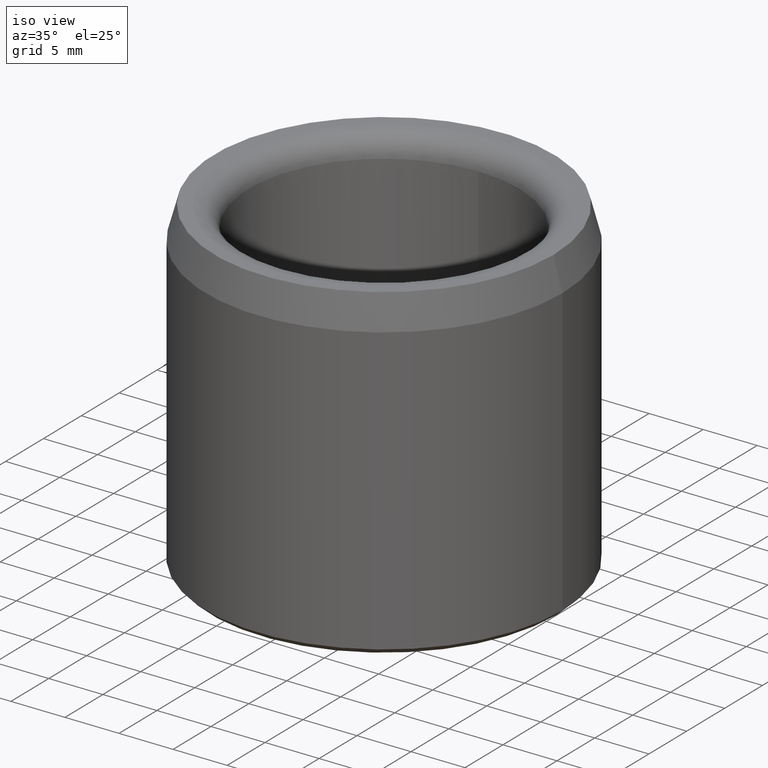
[diagram: clean part render]
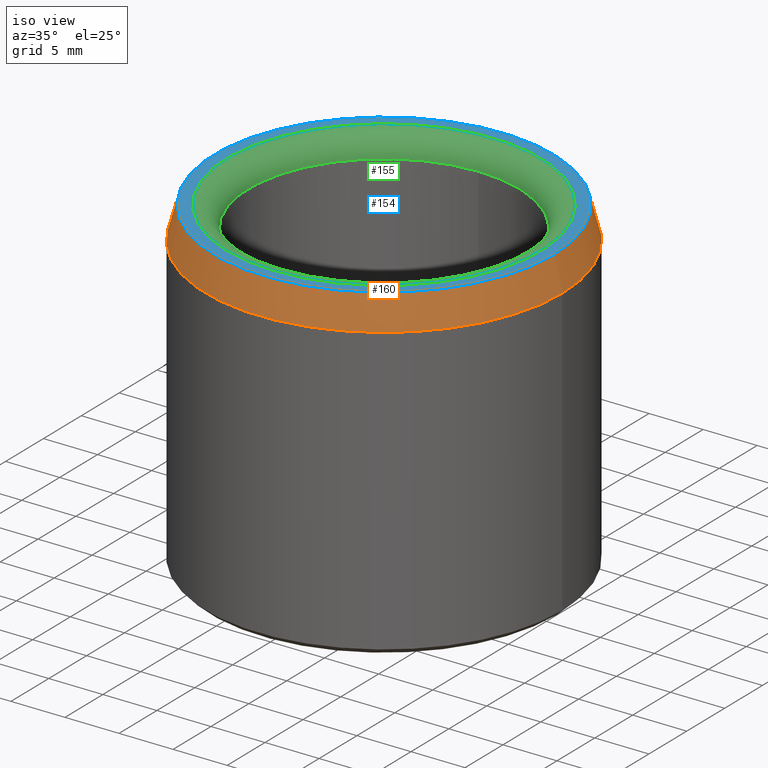
[diagram: same view with three faces highlighted in distinct colors, each labeled with its STEP entity id]
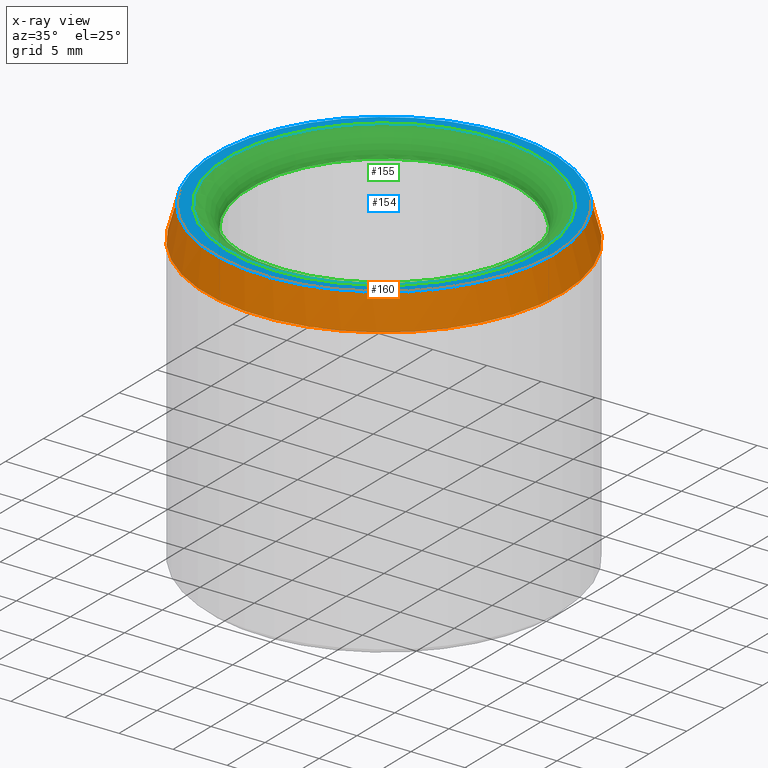
[diagram: x-ray of the same camera — body ghosted, the three highlighted faces saturated]
A machine part, iso view with three faces highlighted in distinct colors.
The next image is the same camera in x-ray (body ghosted, the three faces saturated) — at least one of them is partly hidden behind the body in this view.
Their STEP definitions:

[orange] entity #160 — the highlighted conical surface has half-angle 15 deg.
#160=ADVANCED_FACE('',(#184,#185),#186,.T.);
#184=FACE_BOUND('',#209,.T.);
#185=FACE_OUTER_BOUND('',#210,.T.);
#186=CONICAL_SURFACE('',#211,0.0165,0.261799387799149);
#209=EDGE_LOOP('',(#247));
#210=EDGE_LOOP('',(#248));
#211=AXIS2_PLACEMENT_3D('',#249,#250,#251);
#247=ORIENTED_EDGE('',*,*,#255,.T.);
#248=ORIENTED_EDGE('',*,*,#259,.F.);
#249=CARTESIAN_POINT('',(0.0,1.73472347597681E-018,0.027));
#250=DIRECTION('',(0.0,-6.12323399573677E-017,-1.0));
#251=DIRECTION('',(0.0,1.0,-6.12323399573677E-017));
#255=EDGE_CURVE('',#266,#266,#267,.T.);
#259=EDGE_CURVE('',#274,#274,#275,.T.);
#266=VERTEX_POINT('',#282);
#267=CIRCLE('',#283,0.0156961524227067);
#274=VERTEX_POINT('',#290);
#275=CIRCLE('',#291,0.0165);
#282=CARTESIAN_POINT('',(0.0156961524227067,1.73472347597681E-018,0.03));
#283=AXIS2_PLACEMENT_3D('',#301,#302,#303);
#290=CARTESIAN_POINT('',(0.0165,1.73472347597681E-018,0.027));
#291=AXIS2_PLACEMENT_3D('',#313,#314,#315);
#301=CARTESIAN_POINT('',(0.0,1.73472347597681E-018,0.03));
#302=DIRECTION('',(0.0,-6.12323399573677E-017,-1.0));
#303=DIRECTION('',(0.0,1.0,-6.12323399573677E-017));
#313=CARTESIAN_POINT('',(0.0,1.73472347597681E-018,0.027));
#314=DIRECTION('',(0.0,-6.12323399573677E-017,-1.0));
#315=DIRECTION('',(0.0,1.0,-6.12323399573677E-017));

[blue] entity #154 — the highlighted planar face has unit normal (0, 0, 1).
#154=ADVANCED_FACE('',(#166,#167),#168,.T.);
#166=FACE_BOUND('',#191,.T.);
#167=FACE_OUTER_BOUND('',#192,.T.);
#168=PLANE('',#193);
#191=EDGE_LOOP('',(#217));
#192=EDGE_LOOP('',(#218));
#193=AXIS2_PLACEMENT_3D('',#219,#220,#221);
#217=ORIENTED_EDGE('',*,*,#254,.T.);
#218=ORIENTED_EDGE('',*,*,#255,.F.);
#219=CARTESIAN_POINT('',(0.0156961524227067,1.73472347597681E-018,0.03));
#220=DIRECTION('',(0.0,6.12323399573677E-017,1.0));
#221=DIRECTION('',(0.0,-1.0,6.12323399573677E-017));
#254=EDGE_CURVE('',#264,#264,#265,.F.);
#255=EDGE_CURVE('',#266,#266,#267,.T.);
#264=VERTEX_POINT('',#280);
#265=CIRCLE('',#281,0.0145);
#266=VERTEX_POINT('',#282);
#267=CIRCLE('',#283,0.0156961524227067);
#280=CARTESIAN_POINT('',(0.0,-0.0145,0.03));
#281=AXIS2_PLACEMENT_3D('',#298,#299,#300);
#282=CARTESIAN_POINT('',(0.0156961524227067,1.73472347597681E-018,0.03));
#283=AXIS2_PLACEMENT_3D('',#301,#302,#303);
#298=CARTESIAN_POINT('',(0.0,1.83697019872103E-018,0.03));
#299=DIRECTION('',(0.0,6.12323399573677E-017,1.0));
#300=DIRECTION('',(0.0,-1.0,6.12323399573677E-017));
#301=CARTESIAN_POINT('',(0.0,1.73472347597681E-018,0.03));
#302=DIRECTION('',(0.0,-6.12323399573677E-017,-1.0));
#303=DIRECTION('',(0.0,1.0,-6.12323399573677E-017));

[green] entity #155 — the highlighted toroidal blend (fillet) surface has major radius 14.5 mm and minor (blend) radius 2 mm.
#155=ADVANCED_FACE('',(#169,#170),#171,.T.);
#169=FACE_OUTER_BOUND('',#194,.T.);
#170=FACE_OUTER_BOUND('',#195,.T.);
#171=TOROIDAL_SURFACE('',#196,0.0145,0.002);
#194=EDGE_LOOP('',(#222));
#195=EDGE_LOOP('',(#223));
#196=AXIS2_PLACEMENT_3D('',#224,#225,#226);
#222=ORIENTED_EDGE('',*,*,#256,.F.);
#223=ORIENTED_EDGE('',*,*,#254,.F.);
#224=CARTESIAN_POINT('',(0.0,1.71450551880629E-018,0.028));
#225=DIRECTION('',(0.0,6.12323399573677E-017,1.0));
#226=DIRECTION('',(0.0,-1.0,6.12323399573677E-017));
#254=EDGE_CURVE('',#264,#264,#265,.F.);
#256=EDGE_CURVE('',#268,#268,#269,.T.);
#264=VERTEX_POINT('',#280);
#265=CIRCLE('',#281,0.0145);
#268=VERTEX_POINT('',#284);
#269=CIRCLE('',#285,0.0125);
#280=CARTESIAN_POINT('',(0.0,-0.0145,0.03));
#281=AXIS2_PLACEMENT_3D('',#298,#299,#300);
#284=CARTESIAN_POINT('',(0.0,-0.0125,0.028));
#285=AXIS2_PLACEMENT_3D('',#304,#305,#306);
#298=CARTESIAN_POINT('',(0.0,1.83697019872103E-018,0.03));
#299=DIRECTION('',(0.0,6.12323399573677E-017,1.0));
#300=DIRECTION('',(0.0,-1.0,6.12323399573677E-017));
#304=CARTESIAN_POINT('',(0.0,1.71450551880629E-018,0.028));
#305=DIRECTION('',(0.0,6.12323399573677E-017,1.0));
#306=DIRECTION('',(0.0,-1.0,6.12323399573677E-017));